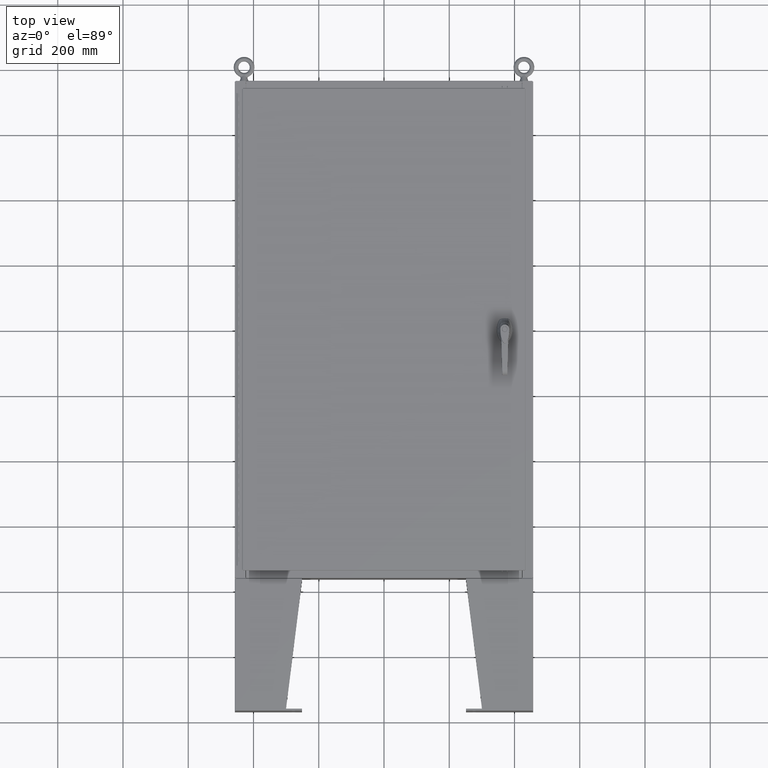
[diagram: clean part render]
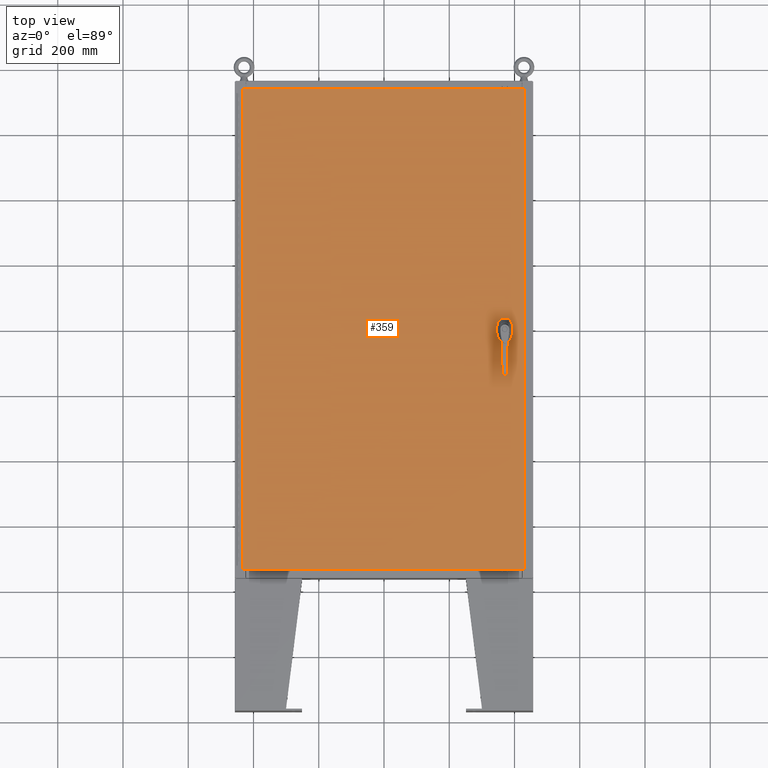
[diagram: same view with one face highlighted and labeled with its STEP entity id]
A machine part, top view. The second image highlights one B-rep face of the part: STEP entity #359.
In plain terms, the highlighted planar face has unit normal (0, 0, -1).
Its self-contained STEP definition (entity closure, byte-faithful):
#359 = ADVANCED_FACE ( 'NONE', ( #63390, #93502, #29815 ), #17388, .F. ) ;
#5853 = CARTESIAN_POINT ( 'NONE',  ( 14.57800000000000500, 0.0000000000000000000, 0.0000000000000000000 ) ) ;
#5987 = DIRECTION ( 'NONE',  ( -0.0000000000000000000, 0.0000000000000000000, 1.000000000000000000 ) ) ;
#6404 = EDGE_LOOP ( 'NONE', ( #111295, #8454 ) ) ;
#8124 = CARTESIAN_POINT ( 'NONE',  ( 14.77822737075631400, -0.4029999999999252000, 0.0000000000000000000 ) ) ;
#8454 = ORIENTED_EDGE ( 'NONE', *, *, #125487, .F. ) ;
#10156 = ORIENTED_EDGE ( 'NONE', *, *, #98412, .T. ) ;
#10164 = LINE ( 'NONE', #64801, #17231 ) ;
#11877 = CARTESIAN_POINT ( 'NONE',  ( 14.57800000000000500, 0.0000000000000000000, 0.0000000000000000000 ) ) ;
#12082 = ORIENTED_EDGE ( 'NONE', *, *, #140991, .F. ) ;
#12222 = VERTEX_POINT ( 'NONE', #111242 ) ;
#15410 = CIRCLE ( 'NONE', #133291, 0.4499999999999168000 ) ;
#15604 = AXIS2_PLACEMENT_3D ( 'NONE', #54762, #133879, #66085 ) ;
#17220 = DIRECTION ( 'NONE',  ( 1.000000000000000000, 0.0000000000000000000, 0.0000000000000000000 ) ) ;
#17231 = VECTOR ( 'NONE', #132580, 39.37007874015748100 ) ;
#17388 = PLANE ( 'NONE',  #107822 ) ;
#21950 = EDGE_LOOP ( 'NONE', ( #145200, #79636, #108481, #81293, #12082, #115081, #49368, #73967 ) ) ;
#23222 = CARTESIAN_POINT ( 'NONE',  ( 14.40650000000000300, -1.338000000000000100, 0.0000000000000000000 ) ) ;
#23227 = DIRECTION ( 'NONE',  ( 1.000000000000000000, 0.0000000000000000000, 0.0000000000000000000 ) ) ;
#23269 = CARTESIAN_POINT ( 'NONE',  ( 14.17500000000007700, 0.2002273707563079800, 0.0000000000000000000 ) ) ;
#24168 = CARTESIAN_POINT ( 'NONE',  ( 16.99030000000000500, -29.00630000000000000, -2.048885995248197400E-016 ) ) ;
#26667 = EDGE_CURVE ( 'NONE', #137909, #12222, #82388, .T. ) ;
#26761 = CIRCLE ( 'NONE', #15604, 0.4499999999999168000 ) ;
#27023 = VERTEX_POINT ( 'NONE', #135347 ) ;
#27551 = DIRECTION ( 'NONE',  ( 0.0000000000000000000, -1.000000000000000000, 0.0000000000000000000 ) ) ;
#29228 = CARTESIAN_POINT ( 'NONE',  ( 16.99030000000000500, 29.00630000000000300, 1.946441695485787500E-015 ) ) ;
#29815 = FACE_BOUND ( 'NONE', #21950, .T. ) ;
#30026 = DIRECTION ( 'NONE',  ( -1.000000000000000000, 0.0000000000000000000, 0.0000000000000000000 ) ) ;
#31285 = VERTEX_POINT ( 'NONE', #112485 ) ;
#35106 = DIRECTION ( 'NONE',  ( 1.000000000000000000, 0.0000000000000000000, 0.0000000000000000000 ) ) ;
#35756 = DIRECTION ( 'NONE',  ( 0.0000000000000000000, -1.000000000000000000, 0.0000000000000000000 ) ) ;
#38644 = AXIS2_PLACEMENT_3D ( 'NONE', #5853, #84912, #17220 ) ;
#39541 = EDGE_CURVE ( 'NONE', #137909, #54747, #66502, .T. ) ;
#41835 = LINE ( 'NONE', #136499, #132103 ) ;
#41907 = ORIENTED_EDGE ( 'NONE', *, *, #89610, .T. ) ;
#42099 = DIRECTION ( 'NONE',  ( 0.0000000000000000000, 0.0000000000000000000, -1.000000000000000000 ) ) ;
#42361 = CIRCLE ( 'NONE', #140436, 0.1715000000000011500 ) ;
#45114 = VECTOR ( 'NONE', #72271, 39.37007874015748100 ) ;
#45647 = CARTESIAN_POINT ( 'NONE',  ( 14.57800000000000500, 0.0000000000000000000, 0.0000000000000000000 ) ) ;
#47921 = EDGE_CURVE ( 'NONE', #134043, #50273, #26761, .T. ) ;
#49368 = ORIENTED_EDGE ( 'NONE', *, *, #98733, .F. ) ;
#50273 = VERTEX_POINT ( 'NONE', #120133 ) ;
#51702 = CARTESIAN_POINT ( 'NONE',  ( 14.57800000000000500, -1.338000000000000100, 0.0000000000000000000 ) ) ;
#53851 = EDGE_CURVE ( 'NONE', #50273, #131757, #41835, .T. ) ;
#53920 = LINE ( 'NONE', #97799, #140581 ) ;
#54747 = VERTEX_POINT ( 'NONE', #120748 ) ;
#54762 = CARTESIAN_POINT ( 'NONE',  ( 14.57800000000000500, 0.0000000000000000000, 0.0000000000000000000 ) ) ;
#55731 = LINE ( 'NONE', #128708, #45114 ) ;
#55969 = ORIENTED_EDGE ( 'NONE', *, *, #101463, .T. ) ;
#56996 = DIRECTION ( 'NONE',  ( 1.000000000000000000, 0.0000000000000000000, 0.0000000000000000000 ) ) ;
#62996 = DIRECTION ( 'NONE',  ( 1.000000000000000000, 0.0000000000000000000, 0.0000000000000000000 ) ) ;
#63390 = FACE_BOUND ( 'NONE', #6404, .T. ) ;
#64801 = CARTESIAN_POINT ( 'NONE',  ( -16.99029999999999800, -29.00630000000000300, 1.946441695485787500E-015 ) ) ;
#65416 = VERTEX_POINT ( 'NONE', #23269 ) ;
#66085 = DIRECTION ( 'NONE',  ( 1.000000000000000000, 0.0000000000000000000, 0.0000000000000000000 ) ) ;
#66421 = VECTOR ( 'NONE', #86022, 39.37007874015748100 ) ;
#66502 = LINE ( 'NONE', #102332, #70041 ) ;
#67466 = VECTOR ( 'NONE', #35756, 39.37007874015748100 ) ;
#70041 = VECTOR ( 'NONE', #113754, 39.37007874015748100 ) ;
#70732 = VERTEX_POINT ( 'NONE', #24168 ) ;
#71976 = ORIENTED_EDGE ( 'NONE', *, *, #77695, .T. ) ;
#72271 = DIRECTION ( 'NONE',  ( 0.0000000000000000000, 1.000000000000000000, 0.0000000000000000000 ) ) ;
#73697 = CARTESIAN_POINT ( 'NONE',  ( 14.57800000000000500, -1.338000000000000100, 0.0000000000000000000 ) ) ;
#73967 = ORIENTED_EDGE ( 'NONE', *, *, #26667, .F. ) ;
#75512 = EDGE_LOOP ( 'NONE', ( #41907, #10156, #71976, #55969 ) ) ;
#77695 = EDGE_CURVE ( 'NONE', #86529, #27023, #126680, .T. ) ;
#78285 = LINE ( 'NONE', #95299, #85286 ) ;
#79636 = ORIENTED_EDGE ( 'NONE', *, *, #143722, .F. ) ;
#81293 = ORIENTED_EDGE ( 'NONE', *, *, #47921, .F. ) ;
#82381 = VERTEX_POINT ( 'NONE', #23222 ) ;
#82388 = CIRCLE ( 'NONE', #38644, 0.4499999999999168000 ) ;
#82983 = CARTESIAN_POINT ( 'NONE',  ( 0.0000000000000000000, 0.0000000000000000000, 0.0000000000000000000 ) ) ;
#83632 = AXIS2_PLACEMENT_3D ( 'NONE', #45647, #124828, #56996 ) ;
#84912 = DIRECTION ( 'NONE',  ( -0.0000000000000000000, 0.0000000000000000000, 1.000000000000000000 ) ) ;
#85034 = DIRECTION ( 'NONE',  ( 1.000000000000000000, 0.0000000000000000000, 0.0000000000000000000 ) ) ;
#85286 = VECTOR ( 'NONE', #27551, 39.37007874015748100 ) ;
#86022 = DIRECTION ( 'NONE',  ( -1.000000000000000000, -0.0000000000000000000, -0.0000000000000000000 ) ) ;
#86120 = CARTESIAN_POINT ( 'NONE',  ( 14.17500000000007700, -0.2002273707563079800, 0.0000000000000000000 ) ) ;
#86529 = VERTEX_POINT ( 'NONE', #121905 ) ;
#89610 = EDGE_CURVE ( 'NONE', #127797, #70732, #10164, .T. ) ;
#89907 = EDGE_CURVE ( 'NONE', #102244, #65416, #15410, .T. ) ;
#90996 = DIRECTION ( 'NONE',  ( -0.0000000000000000000, 0.0000000000000000000, 1.000000000000000000 ) ) ;
#91322 = CARTESIAN_POINT ( 'NONE',  ( 14.37777262924369400, 0.4029999999999252000, 0.0000000000000000000 ) ) ;
#93502 = FACE_OUTER_BOUND ( 'NONE', #75512, .T. ) ;
#95299 = CARTESIAN_POINT ( 'NONE',  ( 14.17500000000007700, 0.0000000000000000000, 0.0000000000000000000 ) ) ;
#97258 = CARTESIAN_POINT ( 'NONE',  ( -16.99029999999999800, -29.00630000000000300, 1.946441695485787500E-015 ) ) ;
#97648 = LINE ( 'NONE', #114998, #67466 ) ;
#97799 = CARTESIAN_POINT ( 'NONE',  ( 0.0000000000000000000, 0.4029999999999252000, 0.0000000000000000000 ) ) ;
#98412 = EDGE_CURVE ( 'NONE', #70732, #86529, #55731, .T. ) ;
#98733 = EDGE_CURVE ( 'NONE', #12222, #102244, #53920, .T. ) ;
#100303 = DIRECTION ( 'NONE',  ( -1.000000000000000000, 0.0000000000000000000, -0.0000000000000000000 ) ) ;
#101463 = EDGE_CURVE ( 'NONE', #27023, #127797, #97648, .T. ) ;
#102244 = VERTEX_POINT ( 'NONE', #91322 ) ;
#102332 = CARTESIAN_POINT ( 'NONE',  ( 14.98099999999993100, 8.175868191945444300E-014, 0.0000000000000000000 ) ) ;
#107822 = AXIS2_PLACEMENT_3D ( 'NONE', #82983, #42099, #100303 ) ;
#108481 = ORIENTED_EDGE ( 'NONE', *, *, #53851, .F. ) ;
#110446 = EDGE_CURVE ( 'NONE', #31285, #82381, #42361, .T. ) ;
#111136 = CIRCLE ( 'NONE', #118382, 0.1715000000000011500 ) ;
#111242 = CARTESIAN_POINT ( 'NONE',  ( 14.77822737075631400, 0.4029999999999252000, 0.0000000000000000000 ) ) ;
#111295 = ORIENTED_EDGE ( 'NONE', *, *, #110446, .F. ) ;
#112029 = CARTESIAN_POINT ( 'NONE',  ( 14.98099999999993100, 0.2002273707563075900, 0.0000000000000000000 ) ) ;
#112485 = CARTESIAN_POINT ( 'NONE',  ( 14.74950000000000500, -1.338000000000000100, 0.0000000000000000000 ) ) ;
#113754 = DIRECTION ( 'NONE',  ( 5.457491617345625800E-015, -1.000000000000000000, 0.0000000000000000000 ) ) ;
#114998 = CARTESIAN_POINT ( 'NONE',  ( -16.99029999999998400, 29.00630000000000000, 4.166068190338001500E-015 ) ) ;
#115081 = ORIENTED_EDGE ( 'NONE', *, *, #89907, .F. ) ;
#118382 = AXIS2_PLACEMENT_3D ( 'NONE', #73697, #5987, #85034 ) ;
#120133 = CARTESIAN_POINT ( 'NONE',  ( 14.37777262924369400, -0.4029999999999252000, 0.0000000000000000000 ) ) ;
#120748 = CARTESIAN_POINT ( 'NONE',  ( 14.98099999999993200, -0.2002273707563079800, 0.0000000000000000000 ) ) ;
#121905 = CARTESIAN_POINT ( 'NONE',  ( 16.99030000000000500, 29.00630000000000300, 1.946441695485787500E-015 ) ) ;
#124828 = DIRECTION ( 'NONE',  ( -0.0000000000000000000, 0.0000000000000000000, 1.000000000000000000 ) ) ;
#125487 = EDGE_CURVE ( 'NONE', #82381, #31285, #111136, .T. ) ;
#126680 = LINE ( 'NONE', #29228, #66421 ) ;
#127797 = VERTEX_POINT ( 'NONE', #97258 ) ;
#128708 = CARTESIAN_POINT ( 'NONE',  ( 16.99030000000000500, -29.00630000000000000, -2.048885995248197400E-016 ) ) ;
#130803 = DIRECTION ( 'NONE',  ( -0.0000000000000000000, 0.0000000000000000000, 1.000000000000000000 ) ) ;
#131757 = VERTEX_POINT ( 'NONE', #8124 ) ;
#132103 = VECTOR ( 'NONE', #35106, 39.37007874015748100 ) ;
#132580 = DIRECTION ( 'NONE',  ( 1.000000000000000000, -0.0000000000000000000, -0.0000000000000000000 ) ) ;
#133291 = AXIS2_PLACEMENT_3D ( 'NONE', #11877, #90996, #23227 ) ;
#133879 = DIRECTION ( 'NONE',  ( -0.0000000000000000000, 0.0000000000000000000, 1.000000000000000000 ) ) ;
#134043 = VERTEX_POINT ( 'NONE', #86120 ) ;
#135347 = CARTESIAN_POINT ( 'NONE',  ( -16.99029999999998400, 29.00630000000000000, 4.166068190338001500E-015 ) ) ;
#136193 = CIRCLE ( 'NONE', #83632, 0.4499999999999168000 ) ;
#136499 = CARTESIAN_POINT ( 'NONE',  ( 0.0000000000000000000, -0.4029999999999252000, 0.0000000000000000000 ) ) ;
#137909 = VERTEX_POINT ( 'NONE', #112029 ) ;
#140436 = AXIS2_PLACEMENT_3D ( 'NONE', #51702, #130803, #62996 ) ;
#140581 = VECTOR ( 'NONE', #30026, 39.37007874015748100 ) ;
#140991 = EDGE_CURVE ( 'NONE', #65416, #134043, #78285, .T. ) ;
#143722 = EDGE_CURVE ( 'NONE', #131757, #54747, #136193, .T. ) ;
#145200 = ORIENTED_EDGE ( 'NONE', *, *, #39541, .T. ) ;